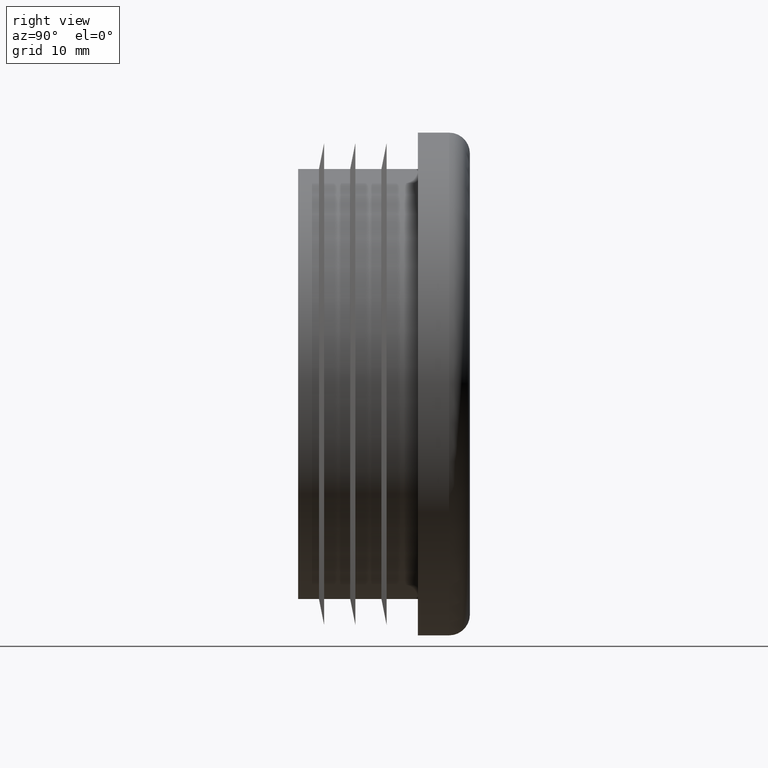
[diagram: clean part render]
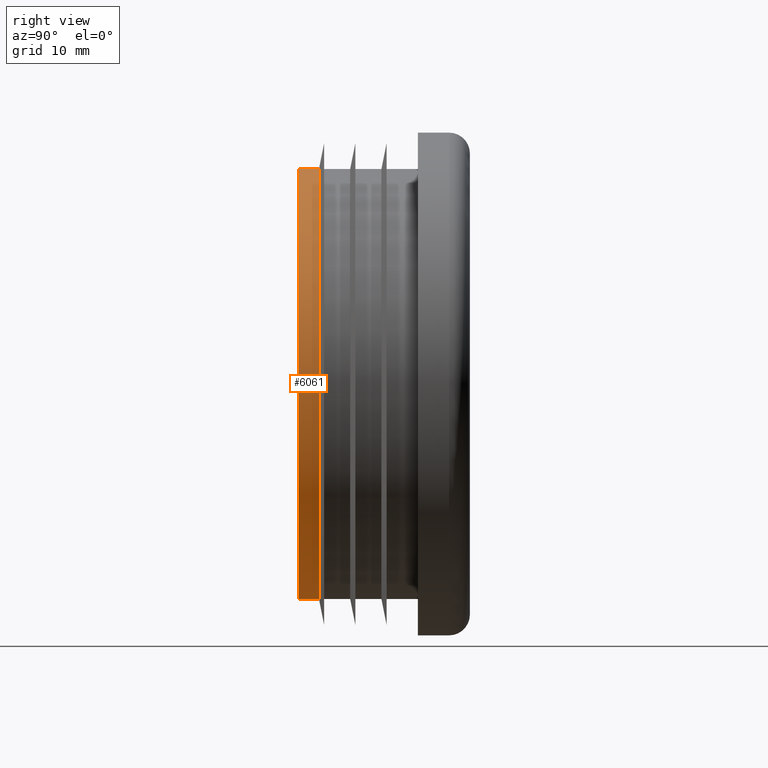
[diagram: same view with one face highlighted and labeled with its STEP entity id]
A machine part, right view. The second image highlights one B-rep face of the part: STEP entity #6061.
In plain terms, the highlighted cylindrical surface (partial cylindrical patch) has radius 20.65 mm, axis along (-0, 1, -0).
Its self-contained STEP definition (entity closure, byte-faithful):
#36 = CARTESIAN_POINT ( 'NONE',  ( 2.528895640239284100E-015, -11.50000000000000000, -20.64999999999999900 ) ) ;
#464 = VECTOR ( 'NONE', #4095, 1000.000000000000000 ) ;
#727 = FACE_OUTER_BOUND ( 'NONE', #2012, .T. ) ;
#875 = CARTESIAN_POINT ( 'NONE',  ( 2.681976490132703100E-015, -9.500000000000001800, -20.64999999999999900 ) ) ;
#902 = ORIENTED_EDGE ( 'NONE', *, *, #9004, .F. ) ;
#975 = EDGE_CURVE ( 'NONE', #2970, #9240, #4022, .T. ) ;
#1054 = CARTESIAN_POINT ( 'NONE',  ( 0.0000000000000000000, -9.500000000000001800, 20.64999999999999900 ) ) ;
#1988 = CARTESIAN_POINT ( 'NONE',  ( 0.0000000000000000000, -11.50000000000000000, 0.0000000000000000000 ) ) ;
#2012 = EDGE_LOOP ( 'NONE', ( #902, #3396, #5818, #6052 ) ) ;
#2258 = EDGE_CURVE ( 'NONE', #7805, #2970, #4216, .T. ) ;
#2443 = CIRCLE ( 'NONE', #5982, 20.64999999999999900 ) ;
#2603 = EDGE_CURVE ( 'NONE', #4971, #9240, #2791, .T. ) ;
#2758 = DIRECTION ( 'NONE',  ( 0.0000000000000000000, 0.0000000000000000000, -1.000000000000000000 ) ) ;
#2791 = LINE ( 'NONE', #7812, #8101 ) ;
#2970 = VERTEX_POINT ( 'NONE', #1054 ) ;
#3337 = CARTESIAN_POINT ( 'NONE',  ( 0.0000000000000000000, -11.50000000000000000, 20.64999999999999900 ) ) ;
#3396 = ORIENTED_EDGE ( 'NONE', *, *, #2603, .T. ) ;
#3690 = AXIS2_PLACEMENT_3D ( 'NONE', #6153, #6033, #6025 ) ;
#4022 = CIRCLE ( 'NONE', #3690, 20.64999999999999900 ) ;
#4095 = DIRECTION ( 'NONE',  ( -0.0000000000000000000, 1.000000000000000000, -0.0000000000000000000 ) ) ;
#4216 = LINE ( 'NONE', #7681, #464 ) ;
#4806 = AXIS2_PLACEMENT_3D ( 'NONE', #8274, #8922, #8194 ) ;
#4971 = VERTEX_POINT ( 'NONE', #36 ) ;
#5818 = ORIENTED_EDGE ( 'NONE', *, *, #975, .F. ) ;
#5982 = AXIS2_PLACEMENT_3D ( 'NONE', #1988, #7160, #2758 ) ;
#6025 = DIRECTION ( 'NONE',  ( 0.0000000000000000000, 0.0000000000000000000, 1.000000000000000000 ) ) ;
#6033 = DIRECTION ( 'NONE',  ( -0.0000000000000000000, 1.000000000000000000, -0.0000000000000000000 ) ) ;
#6052 = ORIENTED_EDGE ( 'NONE', *, *, #2258, .F. ) ;
#6061 = ADVANCED_FACE ( 'NONE', ( #727 ), #8264, .T. ) ;
#6153 = CARTESIAN_POINT ( 'NONE',  ( 0.0000000000000000000, -9.500000000000001800, 0.0000000000000000000 ) ) ;
#7146 = DIRECTION ( 'NONE',  ( -0.0000000000000000000, 1.000000000000000000, -0.0000000000000000000 ) ) ;
#7160 = DIRECTION ( 'NONE',  ( 0.0000000000000000000, -1.000000000000000000, 0.0000000000000000000 ) ) ;
#7681 = CARTESIAN_POINT ( 'NONE',  ( 0.0000000000000000000, -11.50000000000000000, 20.64999999999999900 ) ) ;
#7805 = VERTEX_POINT ( 'NONE', #3337 ) ;
#7812 = CARTESIAN_POINT ( 'NONE',  ( 2.528895640239284100E-015, -11.50000000000000000, -20.64999999999999900 ) ) ;
#8101 = VECTOR ( 'NONE', #7146, 1000.000000000000000 ) ;
#8194 = DIRECTION ( 'NONE',  ( 0.0000000000000000000, 0.0000000000000000000, 1.000000000000000000 ) ) ;
#8264 = CYLINDRICAL_SURFACE ( 'NONE', #4806, 20.64999999999999900 ) ;
#8274 = CARTESIAN_POINT ( 'NONE',  ( 0.0000000000000000000, -11.50000000000000000, 0.0000000000000000000 ) ) ;
#8922 = DIRECTION ( 'NONE',  ( -0.0000000000000000000, 1.000000000000000000, -0.0000000000000000000 ) ) ;
#9004 = EDGE_CURVE ( 'NONE', #4971, #7805, #2443, .T. ) ;
#9240 = VERTEX_POINT ( 'NONE', #875 ) ;